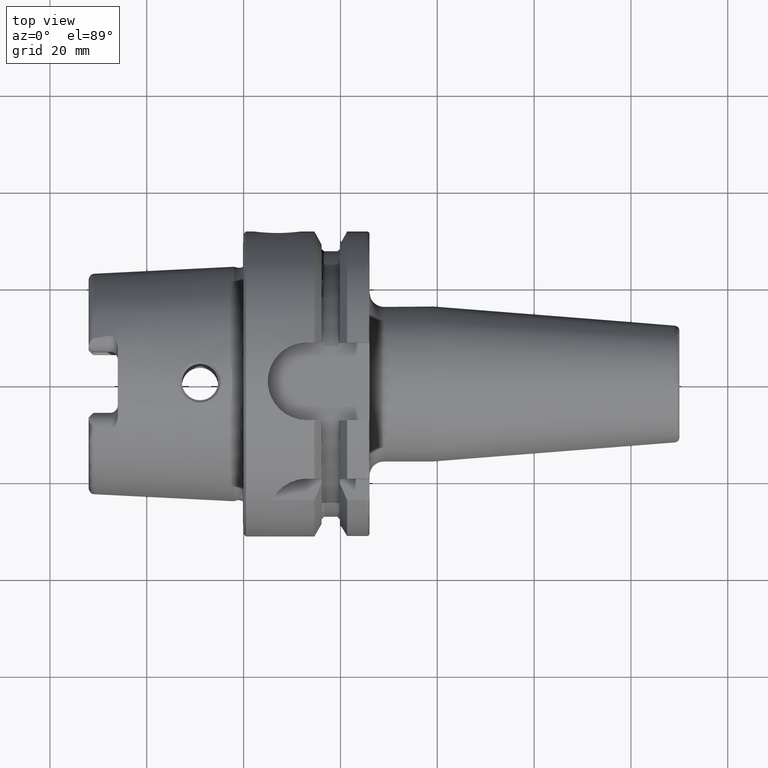
[diagram: clean part render]
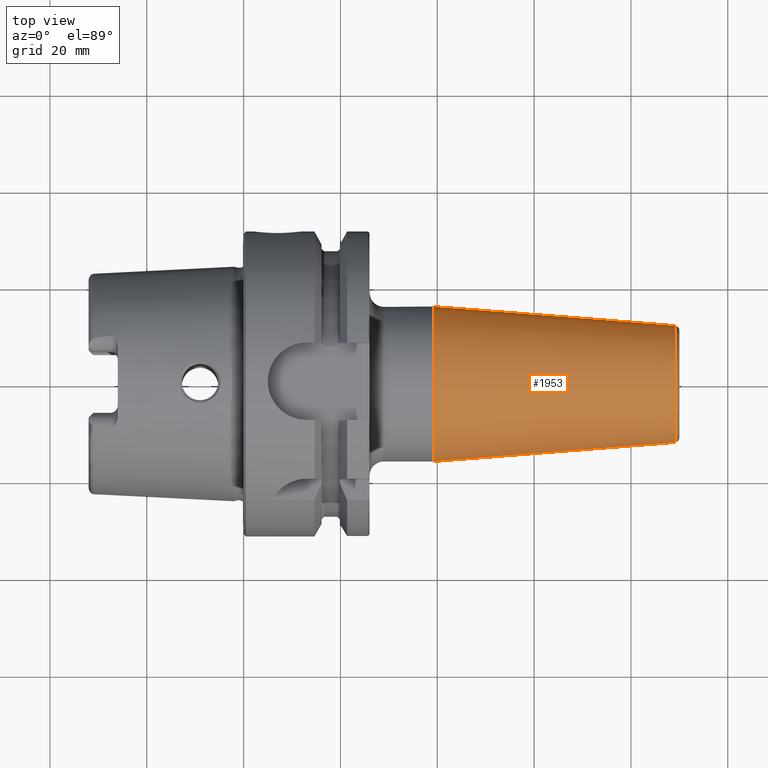
[diagram: same view with one face highlighted and labeled with its STEP entity id]
A machine part, top view. The second image highlights one B-rep face of the part: STEP entity #1953.
In plain terms, the highlighted conical surface has half-angle 4.5 deg.
Its self-contained STEP definition (entity closure, byte-faithful):
#97=CONICAL_SURFACE('',#2104,14.,0.0785398163397449);
#136=LINE('',#2973,#242);
#242=VECTOR('',#2375,14.);
#400=FACE_OUTER_BOUND('',#521,.T.);
#521=EDGE_LOOP('',(#1300,#1301,#1302,#1303,#1304));
#650=CIRCLE('',#2100,12.0725268420749);
#651=CIRCLE('',#2101,12.0725268420749);
#653=CIRCLE('',#2105,16.);
#774=VERTEX_POINT('',#2963);
#775=VERTEX_POINT('',#2965);
#777=VERTEX_POINT('',#2972);
#979=EDGE_CURVE('',#774,#775,#650,.T.);
#980=EDGE_CURVE('',#775,#774,#651,.T.);
#982=EDGE_CURVE('',#775,#777,#136,.T.);
#983=EDGE_CURVE('',#777,#777,#653,.T.);
#1300=ORIENTED_EDGE('',*,*,#980,.F.);
#1301=ORIENTED_EDGE('',*,*,#982,.T.);
#1302=ORIENTED_EDGE('',*,*,#983,.T.);
#1303=ORIENTED_EDGE('',*,*,#982,.F.);
#1304=ORIENTED_EDGE('',*,*,#979,.F.);
#1953=ADVANCED_FACE('',(#400),#97,.T.);
#2100=AXIS2_PLACEMENT_3D('',#2966,#2365,#2366);
#2101=AXIS2_PLACEMENT_3D('',#2967,#2367,#2368);
#2104=AXIS2_PLACEMENT_3D('',#2971,#2373,#2374);
#2105=AXIS2_PLACEMENT_3D('',#2974,#2376,#2377);
#2365=DIRECTION('center_axis',(1.,0.,0.));
#2366=DIRECTION('ref_axis',(0.,-1.,3.06161699786838E-17));
#2367=DIRECTION('center_axis',(1.,0.,0.));
#2368=DIRECTION('ref_axis',(0.,-1.,3.06161699786838E-17));
#2373=DIRECTION('center_axis',(-1.,0.,0.));
#2374=DIRECTION('ref_axis',(0.,1.,0.));
#2375=DIRECTION('',(-0.996917333733128,-0.078459095727845,-9.60846804471012E-18));
#2376=DIRECTION('center_axis',(1.,0.,0.));
#2377=DIRECTION('ref_axis',(0.,0.,-1.));
#2963=CARTESIAN_POINT('',(89.0784590957279,-1.47845813547676E-15,12.0725268420749));
#2965=CARTESIAN_POINT('',(89.0784590957279,-12.0725268420749,-1.47845813547676E-15));
#2966=CARTESIAN_POINT('Origin',(89.0784590957279,0.,-1.84807266934594E-15));
#2967=CARTESIAN_POINT('Origin',(89.0784590957279,0.,-1.84807266934594E-15));
#2971=CARTESIAN_POINT('Origin',(64.5875905276506,0.,0.));
#2972=CARTESIAN_POINT('',(39.1751810553012,-16.,-1.95943487863577E-15));
#2973=CARTESIAN_POINT('',(64.5875905276506,-14.,-1.71450551880629E-15));
#2974=CARTESIAN_POINT('Origin',(39.1751810553012,0.,0.));